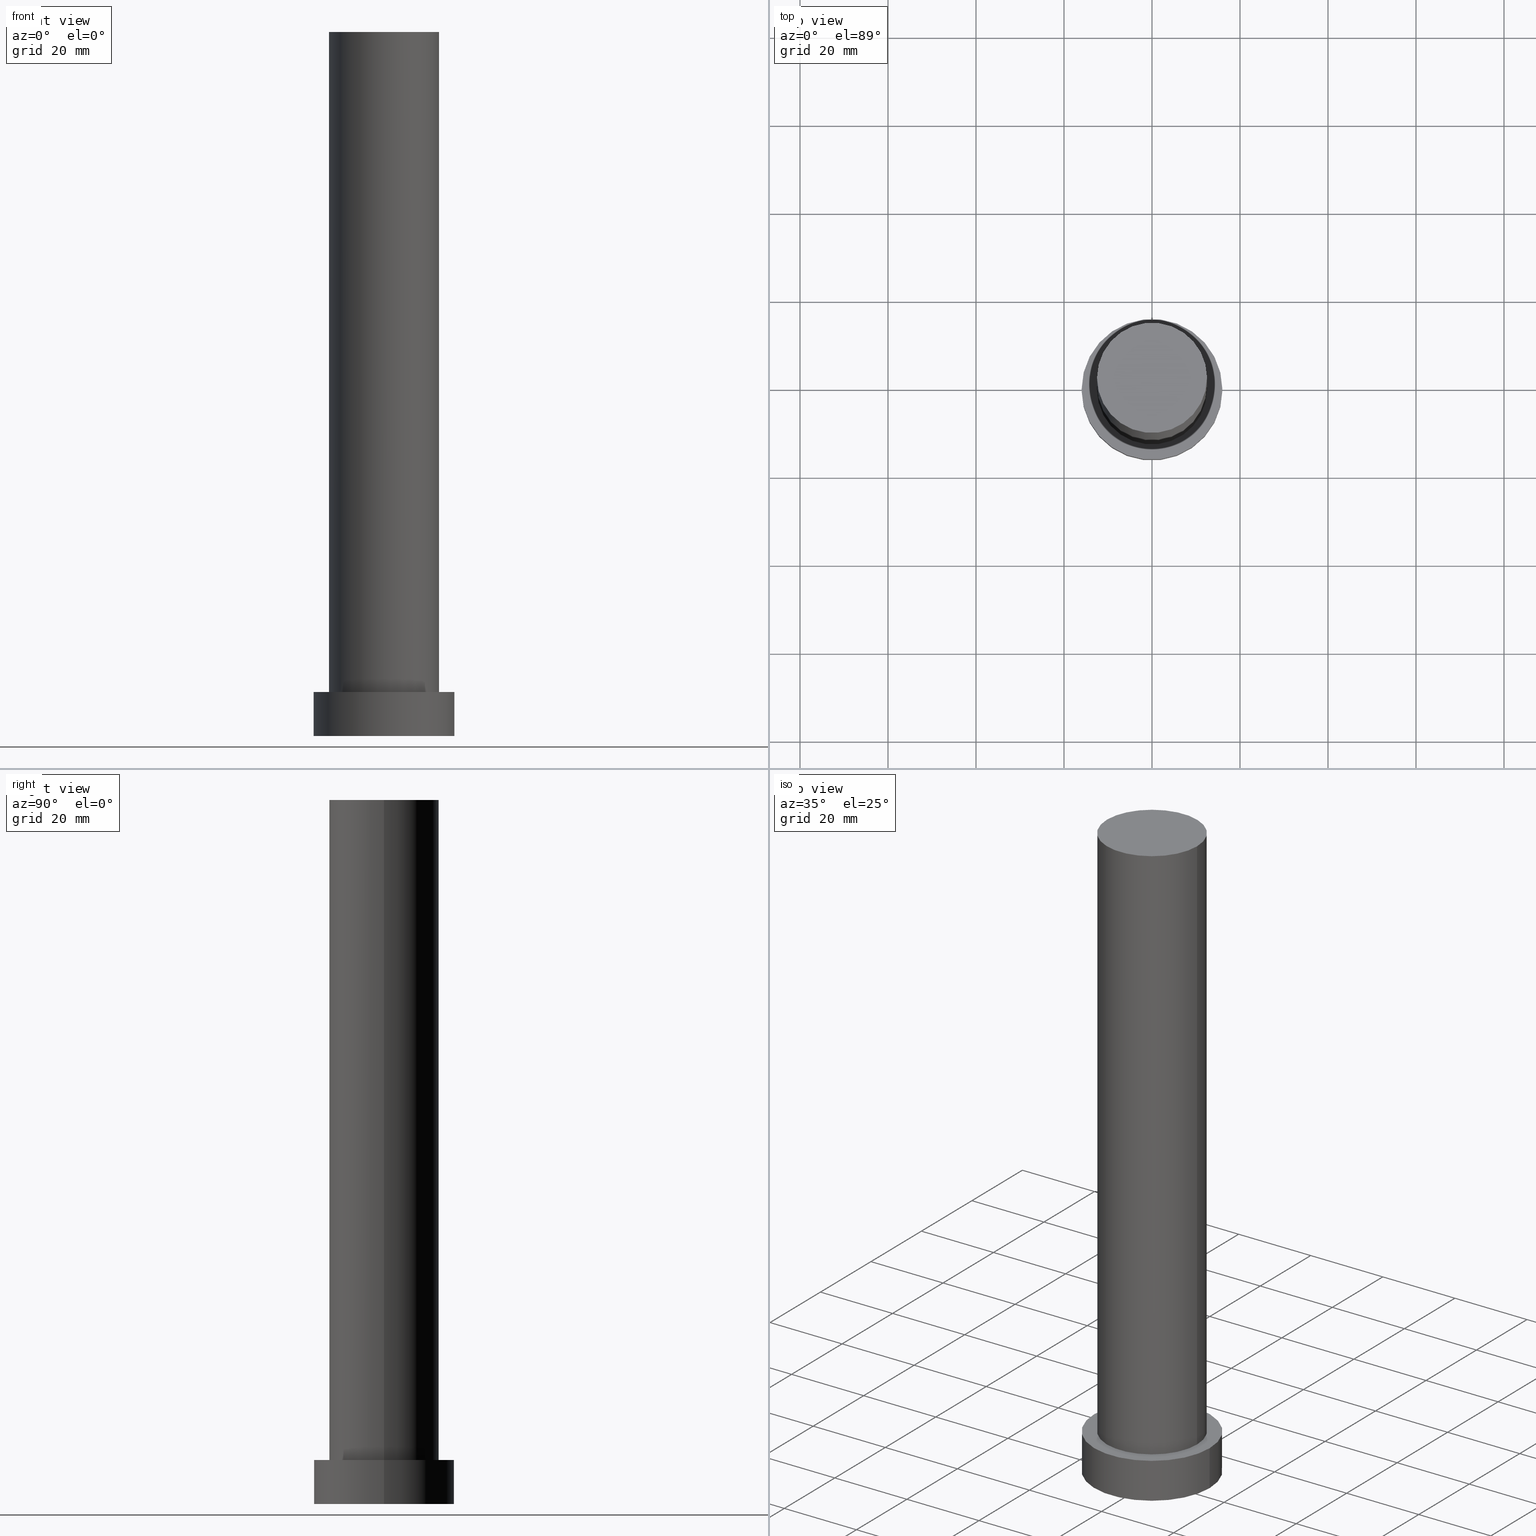
[diagram: canonical four-view strip — front | top / right | iso, engineering-drawing reading convention]
A machine part, canonical four-view strip (front | top / right | iso — engineering-drawing reading convention). The complete STEP part file that produces these views, byte-faithful:
ISO-10303-21;
HEADER;
FILE_DESCRIPTION (( 'STEP AP203' ),
    '1' );
FILE_NAME ('0fbe.STEP',
    '2023-02-13T08:39:05',
    ( '' ),
    ( '' ),
    'SwSTEP 2.0',
    'SolidWorks 2019',
    '' );
FILE_SCHEMA (( 'CONFIG_CONTROL_DESIGN' ));
ENDSEC;

DATA;
#1 = FACE_OUTER_BOUND ( 'NONE', #244, .T. ) ;
#2 = DIRECTION ( 'NONE',  ( 0.000000000000000000, 0.000000000000000000, 1.000000000000000000 ) ) ;
#3 = APPROVAL ( #54, 'NEUR�EN�' ) ;
#4 = PERSON_AND_ORGANIZATION ( #42, #240 ) ;
#5 =( NAMED_UNIT ( * ) PLANE_ANGLE_UNIT ( ) SI_UNIT ( $, .RADIAN. ) );
#6 = LOCAL_TIME ( 9, 39, 5.000000000000000000, #10 ) ;
#7 = DIRECTION ( 'NONE',  ( 1.000000000000000000, 0.000000000000000000, 0.000000000000000000 ) ) ;
#8 = CC_DESIGN_PERSON_AND_ORGANIZATION_ASSIGNMENT ( #144, #46, ( #73 ) ) ;
#9 = ORIENTED_EDGE ( 'NONE', *, *, #103, .F. ) ;
#10 = COORDINATED_UNIVERSAL_TIME_OFFSET ( 1, 0, .AHEAD. ) ;
#11 = EDGE_LOOP ( 'NONE', ( #186, #249 ) ) ;
#12 = CIRCLE ( 'NONE', #31, 16.00000000000000000 ) ;
#13 = APPROVAL_DATE_TIME ( #74, #3 ) ;
#14 = FACE_OUTER_BOUND ( 'NONE', #76, .T. ) ;
#15 = PERSON_AND_ORGANIZATION ( #42, #240 ) ;
#16 = ORIENTED_EDGE ( 'NONE', *, *, #236, .T. ) ;
#17 = ORIENTED_EDGE ( 'NONE', *, *, #103, .T. ) ;
#18 = AXIS2_PLACEMENT_3D ( 'NONE', #171, #188, #152 ) ;
#19 = CIRCLE ( 'NONE', #163, 12.50000000000000000 ) ;
#20 = CARTESIAN_POINT ( 'NONE',  ( -16.00000000000000000, 0.000000000000000000, 0.000000000000000000 ) ) ;
#21 = DIRECTION ( 'NONE',  ( -0.000000000000000000, -0.000000000000000000, -1.000000000000000000 ) ) ;
#22 = EDGE_CURVE ( 'NONE', #247, #222, #238, .T. ) ;
#23 = AXIS2_PLACEMENT_3D ( 'NONE', #121, #83, #63 ) ;
#24 = CARTESIAN_POINT ( 'NONE',  ( 0.000000000000000000, 0.000000000000000000, 10.00000000000000000 ) ) ;
#25 = LINE ( 'NONE', #175, #108 ) ;
#26 = PERSON_AND_ORGANIZATION ( #42, #240 ) ;
#27 = ADVANCED_BREP_SHAPE_REPRESENTATION ( '0fbe', ( #230, #101 ), #180 ) ;
#28 = SECURITY_CLASSIFICATION ( '', '', #202 ) ;
#29 = CLOSED_SHELL ( 'NONE', ( #184, #160, #168, #47, #140, #123, #55 ) ) ;
#30 = EDGE_CURVE ( 'NONE', #129, #219, #69, .T. ) ;
#31 = AXIS2_PLACEMENT_3D ( 'NONE', #62, #215, #45 ) ;
#32 = ORIENTED_EDGE ( 'NONE', *, *, #66, .F. ) ;
#33 = CALENDAR_DATE ( 2023, 13, 2 ) ;
#34 = DIRECTION ( 'NONE',  ( 1.000000000000000000, 0.000000000000000000, 0.000000000000000000 ) ) ;
#35 = PRODUCT_RELATED_PRODUCT_CATEGORY ( 'detail', '', ( #204 ) ) ;
#36 = ORIENTED_EDGE ( 'NONE', *, *, #226, .T. ) ;
#37 = APPROVAL_PERSON_ORGANIZATION ( #4, #98, #162 ) ;
#38 = APPROVAL_DATE_TIME ( #151, #107 ) ;
#39 = VERTEX_POINT ( 'NONE', #133 ) ;
#40 = DIRECTION ( 'NONE',  ( -0.000000000000000000, -0.000000000000000000, -1.000000000000000000 ) ) ;
#41 = CARTESIAN_POINT ( 'NONE',  ( 0.000000000000000000, 0.000000000000000000, 160.0000000000000000 ) ) ;
#42 = PERSON ( 'NEUR�EN�', 'NEUR�EN�', 'NEUR�EN�', ('NEUR�EN�'), ('NEUR�EN�'), ('NEUR�EN�') ) ;
#43 = EDGE_CURVE ( 'NONE', #173, #77, #70, .T. ) ;
#44 = FACE_OUTER_BOUND ( 'NONE', #205, .T. ) ;
#45 = DIRECTION ( 'NONE',  ( 1.000000000000000000, 0.000000000000000000, 0.000000000000000000 ) ) ;
#46 = PERSON_AND_ORGANIZATION_ROLE ( 'creator' ) ;
#47 = ADVANCED_FACE ( 'NONE', ( #57, #14 ), #153, .T. ) ;
#48 = CARTESIAN_POINT ( 'NONE',  ( 0.000000000000000000, 0.000000000000000000, 0.000000000000000000 ) ) ;
#49 = CC_DESIGN_PERSON_AND_ORGANIZATION_ASSIGNMENT ( #207, #203, ( #169 ) ) ;
#50 = DIRECTION ( 'NONE',  ( 0.000000000000000000, 0.000000000000000000, 1.000000000000000000 ) ) ;
#51 = APPROVAL_STATUS ( 'not_yet_approved' ) ;
#52 = CIRCLE ( 'NONE', #86, 12.50000000000000000 ) ;
#53 = ORIENTED_EDGE ( 'NONE', *, *, #30, .F. ) ;
#54 = APPROVAL_STATUS ( 'not_yet_approved' ) ;
#55 = ADVANCED_FACE ( 'NONE', ( #254 ), #104, .T. ) ;
#56 = EDGE_LOOP ( 'NONE', ( #113, #17, #223, #100 ) ) ;
#57 = FACE_BOUND ( 'NONE', #11, .T. ) ;
#58 = CALENDAR_DATE ( 2023, 13, 2 ) ;
#59 = AXIS2_PLACEMENT_3D ( 'NONE', #24, #106, #231 ) ;
#60 = CALENDAR_DATE ( 2023, 13, 2 ) ;
#61 = ORIENTED_EDGE ( 'NONE', *, *, #201, .F. ) ;
#62 = CARTESIAN_POINT ( 'NONE',  ( 0.000000000000000000, 0.000000000000000000, 10.00000000000000000 ) ) ;
#63 = DIRECTION ( 'NONE',  ( -1.000000000000000000, 0.000000000000000000, 0.000000000000000000 ) ) ;
#64 = APPROVAL_PERSON_ORGANIZATION ( #15, #3, #221 ) ;
#65 = LINE ( 'NONE', #194, #214 ) ;
#66 = EDGE_CURVE ( 'NONE', #39, #173, #119, .T. ) ;
#67 = DIRECTION ( 'NONE',  ( 1.000000000000000000, 0.000000000000000000, 0.000000000000000000 ) ) ;
#68 = CARTESIAN_POINT ( 'NONE',  ( 0.000000000000000000, 0.000000000000000000, 0.000000000000000000 ) ) ;
#69 = CIRCLE ( 'NONE', #192, 16.00000000000000000 ) ;
#70 = CIRCLE ( 'NONE', #18, 12.50000000000000000 ) ;
#71 = CALENDAR_DATE ( 2023, 13, 2 ) ;
#72 = LOCAL_TIME ( 9, 39, 5.000000000000000000, #126 ) ;
#73 = PRODUCT_DEFINITION ( 'NEZN�M�', '', #169, #242 ) ;
#74 = DATE_AND_TIME ( #170, #6 ) ;
#75 = ORIENTED_EDGE ( 'NONE', *, *, #85, .F. ) ;
#76 = EDGE_LOOP ( 'NONE', ( #36, #147 ) ) ;
#77 = VERTEX_POINT ( 'NONE', #213 ) ;
#78 = ORIENTED_EDGE ( 'NONE', *, *, #85, .T. ) ;
#79 = DIRECTION ( 'NONE',  ( -0.000000000000000000, -0.000000000000000000, -1.000000000000000000 ) ) ;
#80 = DIRECTION ( 'NONE',  ( 1.000000000000000000, 0.000000000000000000, 0.000000000000000000 ) ) ;
#81 = DIRECTION ( 'NONE',  ( -0.000000000000000000, -0.000000000000000000, -1.000000000000000000 ) ) ;
#82 = DIRECTION ( 'NONE',  ( 1.000000000000000000, 0.000000000000000000, -0.000000000000000000 ) ) ;
#83 = DIRECTION ( 'NONE',  ( -0.000000000000000000, -0.000000000000000000, -1.000000000000000000 ) ) ;
#84 = APPROVAL_STATUS ( 'not_yet_approved' ) ;
#85 = EDGE_CURVE ( 'NONE', #39, #127, #19, .T. ) ;
#86 = AXIS2_PLACEMENT_3D ( 'NONE', #139, #212, #80 ) ;
#87 = DIRECTION ( 'NONE',  ( 0.000000000000000000, 0.000000000000000000, 1.000000000000000000 ) ) ;
#88 =( NAMED_UNIT ( * ) SI_UNIT ( $, .STERADIAN. ) SOLID_ANGLE_UNIT ( ) );
#89 = EDGE_CURVE ( 'NONE', #127, #39, #52, .T. ) ;
#90 = APPLICATION_PROTOCOL_DEFINITION ( 'international standard', 'config_control_design', 1994, #112 ) ;
#91 = DIRECTION ( 'NONE',  ( 1.000000000000000000, 0.000000000000000000, 0.000000000000000000 ) ) ;
#92 = COORDINATED_UNIVERSAL_TIME_OFFSET ( 1, 0, .AHEAD. ) ;
#93 = EDGE_LOOP ( 'NONE', ( #78, #110 ) ) ;
#94 = PERSON_AND_ORGANIZATION_ROLE ( 'classification_officer' ) ;
#95 = AXIS2_PLACEMENT_3D ( 'NONE', #253, #21, #102 ) ;
#96 = ORIENTED_EDGE ( 'NONE', *, *, #217, .F. ) ;
#97 = DATE_AND_TIME ( #60, #220 ) ;
#98 = APPROVAL ( #84, 'NEUR�EN�' ) ;
#99 = ORIENTED_EDGE ( 'NONE', *, *, #226, .F. ) ;
#100 = ORIENTED_EDGE ( 'NONE', *, *, #236, .F. ) ;
#101 = AXIS2_PLACEMENT_3D ( 'NONE', #48, #50, #91 ) ;
#102 = DIRECTION ( 'NONE',  ( -1.000000000000000000, 0.000000000000000000, 0.000000000000000000 ) ) ;
#103 = EDGE_CURVE ( 'NONE', #247, #219, #65, .T. ) ;
#104 = PLANE ( 'NONE',  #227 ) ;
#105 = DIRECTION ( 'NONE',  ( 0.000000000000000000, 0.000000000000000000, 1.000000000000000000 ) ) ;
#106 = DIRECTION ( 'NONE',  ( -0.000000000000000000, -0.000000000000000000, -1.000000000000000000 ) ) ;
#107 = APPROVAL ( #51, 'NEUR�EN�' ) ;
#108 = VECTOR ( 'NONE', #79, 1000.000000000000000 ) ;
#109 = VECTOR ( 'NONE', #177, 1000.000000000000000 ) ;
#110 = ORIENTED_EDGE ( 'NONE', *, *, #89, .T. ) ;
#111 = ORIENTED_EDGE ( 'NONE', *, *, #66, .T. ) ;
#112 = APPLICATION_CONTEXT ( 'configuration controlled 3d designs of mechanical parts and assemblies' ) ;
#113 = ORIENTED_EDGE ( 'NONE', *, *, #22, .F. ) ;
#114 = CC_DESIGN_PERSON_AND_ORGANIZATION_ASSIGNMENT ( #26, #145, ( #204 ) ) ;
#115 = EDGE_LOOP ( 'NONE', ( #9, #99, #16, #250 ) ) ;
#116 = ORIENTED_EDGE ( 'NONE', *, *, #43, .T. ) ;
#117 = FACE_OUTER_BOUND ( 'NONE', #191, .T. ) ;
#118 = CARTESIAN_POINT ( 'NONE',  ( 12.50000000000000000, 1.530808498934191521E-15, 160.0000000000000000 ) ) ;
#119 = LINE ( 'NONE', #176, #109 ) ;
#120 = PLANE ( 'NONE',  #251 ) ;
#121 = CARTESIAN_POINT ( 'NONE',  ( 0.000000000000000000, 0.000000000000000000, 10.00000000000000000 ) ) ;
#122 = COORDINATED_UNIVERSAL_TIME_OFFSET ( 1, 0, .AHEAD. ) ;
#123 = ADVANCED_FACE ( 'NONE', ( #1 ), #196, .T. ) ;
#124 = AXIS2_PLACEMENT_3D ( 'NONE', #225, #131, #208 ) ;
#125 = LOCAL_TIME ( 9, 39, 5.000000000000000000, #122 ) ;
#126 = COORDINATED_UNIVERSAL_TIME_OFFSET ( 1, 0, .AHEAD. ) ;
#127 = VERTEX_POINT ( 'NONE', #118 ) ;
#128 = DIRECTION ( 'NONE',  ( 0.000000000000000000, 0.000000000000000000, 1.000000000000000000 ) ) ;
#129 = VERTEX_POINT ( 'NONE', #20 ) ;
#130 = CC_DESIGN_DATE_AND_TIME_ASSIGNMENT ( #97, #224, ( #28 ) ) ;
#131 = DIRECTION ( 'NONE',  ( 0.000000000000000000, 0.000000000000000000, 1.000000000000000000 ) ) ;
#132 = SHAPE_DEFINITION_REPRESENTATION ( #237, #27 ) ;
#133 = CARTESIAN_POINT ( 'NONE',  ( -12.50000000000000000, 0.000000000000000000, 160.0000000000000000 ) ) ;
#134 = DIRECTION ( 'NONE',  ( 0.000000000000000000, 0.000000000000000000, 1.000000000000000000 ) ) ;
#135 = CC_DESIGN_DATE_AND_TIME_ASSIGNMENT ( #172, #149, ( #73 ) ) ;
#136 = DIRECTION ( 'NONE',  ( 0.000000000000000000, 0.000000000000000000, 1.000000000000000000 ) ) ;
#137 = CC_DESIGN_SECURITY_CLASSIFICATION ( #28, ( #169 ) ) ;
#138 = CARTESIAN_POINT ( 'NONE',  ( 0.000000000000000000, 0.000000000000000000, 160.0000000000000000 ) ) ;
#139 = CARTESIAN_POINT ( 'NONE',  ( 0.000000000000000000, 0.000000000000000000, 160.0000000000000000 ) ) ;
#140 = ADVANCED_FACE ( 'NONE', ( #44 ), #120, .F. ) ;
#141 = AXIS2_PLACEMENT_3D ( 'NONE', #138, #81, #181 ) ;
#142 = CARTESIAN_POINT ( 'NONE',  ( -16.00000000000000000, 0.000000000000000000, 10.00000000000000000 ) ) ;
#143 = AXIS2_PLACEMENT_3D ( 'NONE', #68, #136, #67 ) ;
#144 = PERSON_AND_ORGANIZATION ( #42, #240 ) ;
#145 = PERSON_AND_ORGANIZATION_ROLE ( 'design_owner' ) ;
#146 = PERSON_AND_ORGANIZATION ( #42, #240 ) ;
#147 = ORIENTED_EDGE ( 'NONE', *, *, #22, .T. ) ;
#148 = CC_DESIGN_APPROVAL ( #98, ( #73 ) ) ;
#149 = DATE_TIME_ROLE ( 'creation_date' ) ;
#150 = DIRECTION ( 'NONE',  ( 1.000000000000000000, 0.000000000000000000, 0.000000000000000000 ) ) ;
#151 = DATE_AND_TIME ( #58, #72 ) ;
#152 = DIRECTION ( 'NONE',  ( 1.000000000000000000, 0.000000000000000000, 0.000000000000000000 ) ) ;
#153 = PLANE ( 'NONE',  #124 ) ;
#154 = PERSON_AND_ORGANIZATION_ROLE ( 'creator' ) ;
#155 = ORIENTED_EDGE ( 'NONE', *, *, #201, .T. ) ;
#156 = CARTESIAN_POINT ( 'NONE',  ( 16.00000000000000000, 1.959434878635765131E-15, 10.00000000000000000 ) ) ;
#157 = CARTESIAN_POINT ( 'NONE',  ( 0.000000000000000000, 0.000000000000000000, 0.000000000000000000 ) ) ;
#158 = DIRECTION ( 'NONE',  ( -0.000000000000000000, -0.000000000000000000, -1.000000000000000000 ) ) ;
#159 = CARTESIAN_POINT ( 'NONE',  ( 0.000000000000000000, 0.000000000000000000, 160.0000000000000000 ) ) ;
#160 = ADVANCED_FACE ( 'NONE', ( #197 ), #232, .T. ) ;
#161 = CARTESIAN_POINT ( 'NONE',  ( -12.50000000000000000, 0.000000000000000000, 10.00000000000000000 ) ) ;
#162 = APPROVAL_ROLE ( '' ) ;
#163 = AXIS2_PLACEMENT_3D ( 'NONE', #41, #134, #199 ) ;
#164 = APPROVAL_PERSON_ORGANIZATION ( #146, #107, #243 ) ;
#165 = UNCERTAINTY_MEASURE_WITH_UNIT (LENGTH_MEASURE( 1.000000000000000082E-05 ), #218, 'distance_accuracy_value', 'NONE');
#166 = VECTOR ( 'NONE', #158, 1000.000000000000000 ) ;
#167 = CARTESIAN_POINT ( 'NONE',  ( 0.000000000000000000, 0.000000000000000000, 10.00000000000000000 ) ) ;
#168 = ADVANCED_FACE ( 'NONE', ( #210 ), #211, .T. ) ;
#169 = PRODUCT_DEFINITION_FORMATION_WITH_SPECIFIED_SOURCE ( 'LIBOVOLN�', '', #204, .NOT_KNOWN. ) ;
#170 = CALENDAR_DATE ( 2023, 13, 2 ) ;
#171 = CARTESIAN_POINT ( 'NONE',  ( 0.000000000000000000, 0.000000000000000000, 10.00000000000000000 ) ) ;
#172 = DATE_AND_TIME ( #33, #125 ) ;
#173 = VERTEX_POINT ( 'NONE', #161 ) ;
#174 = CIRCLE ( 'NONE', #206, 12.50000000000000000 ) ;
#175 = CARTESIAN_POINT ( 'NONE',  ( -16.00000000000000000, 0.000000000000000000, 10.00000000000000000 ) ) ;
#176 = CARTESIAN_POINT ( 'NONE',  ( -12.50000000000000000, 0.000000000000000000, 160.0000000000000000 ) ) ;
#177 = DIRECTION ( 'NONE',  ( -0.000000000000000000, -0.000000000000000000, -1.000000000000000000 ) ) ;
#178 = CC_DESIGN_PERSON_AND_ORGANIZATION_ASSIGNMENT ( #190, #154, ( #169 ) ) ;
#179 = DIRECTION ( 'NONE',  ( 1.000000000000000000, 0.000000000000000000, -0.000000000000000000 ) ) ;
#180 =( GEOMETRIC_REPRESENTATION_CONTEXT ( 3 ) GLOBAL_UNCERTAINTY_ASSIGNED_CONTEXT ( ( #165 ) ) GLOBAL_UNIT_ASSIGNED_CONTEXT ( ( #218, #5, #88 ) ) REPRESENTATION_CONTEXT ( 'NONE', 'WORKASPACE' ) );
#181 = DIRECTION ( 'NONE',  ( -1.000000000000000000, 0.000000000000000000, 0.000000000000000000 ) ) ;
#182 = AXIS2_PLACEMENT_3D ( 'NONE', #167, #245, #150 ) ;
#183 = DATE_AND_TIME ( #71, #198 ) ;
#184 = ADVANCED_FACE ( 'NONE', ( #117 ), #233, .T. ) ;
#185 = APPLICATION_PROTOCOL_DEFINITION ( 'international standard', 'config_control_design', 1994, #234 ) ;
#186 = ORIENTED_EDGE ( 'NONE', *, *, #43, .F. ) ;
#187 = PERSON_AND_ORGANIZATION ( #42, #240 ) ;
#188 = DIRECTION ( 'NONE',  ( 0.000000000000000000, 0.000000000000000000, 1.000000000000000000 ) ) ;
#189 = CARTESIAN_POINT ( 'NONE',  ( 0.000000000000000000, 0.000000000000000000, 0.000000000000000000 ) ) ;
#190 = PERSON_AND_ORGANIZATION ( #42, #240 ) ;
#191 = EDGE_LOOP ( 'NONE', ( #209, #155, #228, #32 ) ) ;
#192 = AXIS2_PLACEMENT_3D ( 'NONE', #189, #128, #34 ) ;
#193 = CC_DESIGN_APPROVAL ( #3, ( #28 ) ) ;
#194 = CARTESIAN_POINT ( 'NONE',  ( 16.00000000000000000, 1.959434878635765131E-15, 10.00000000000000000 ) ) ;
#195 = CARTESIAN_POINT ( 'NONE',  ( 16.00000000000000000, 1.959434878635765131E-15, 0.000000000000000000 ) ) ;
#196 = CYLINDRICAL_SURFACE ( 'NONE', #141, 12.50000000000000000 ) ;
#197 = FACE_OUTER_BOUND ( 'NONE', #56, .T. ) ;
#198 = LOCAL_TIME ( 9, 39, 5.000000000000000000, #239 ) ;
#199 = DIRECTION ( 'NONE',  ( 1.000000000000000000, 0.000000000000000000, 0.000000000000000000 ) ) ;
#200 = MECHANICAL_CONTEXT ( 'NONE', #112, 'mechanical' ) ;
#201 = EDGE_CURVE ( 'NONE', #127, #77, #252, .T. ) ;
#202 = SECURITY_CLASSIFICATION_LEVEL ( 'unclassified' ) ;
#203 = PERSON_AND_ORGANIZATION_ROLE ( 'design_supplier' ) ;
#204 = PRODUCT ( '0fbe', '0fbe', '', ( #200 ) ) ;
#205 = EDGE_LOOP ( 'NONE', ( #53, #96 ) ) ;
#206 = AXIS2_PLACEMENT_3D ( 'NONE', #229, #87, #7 ) ;
#207 = PERSON_AND_ORGANIZATION ( #42, #240 ) ;
#208 = DIRECTION ( 'NONE',  ( 1.000000000000000000, 0.000000000000000000, -0.000000000000000000 ) ) ;
#209 = ORIENTED_EDGE ( 'NONE', *, *, #89, .F. ) ;
#210 = FACE_OUTER_BOUND ( 'NONE', #115, .T. ) ;
#211 = CYLINDRICAL_SURFACE ( 'NONE', #23, 16.00000000000000000 ) ;
#212 = DIRECTION ( 'NONE',  ( 0.000000000000000000, 0.000000000000000000, 1.000000000000000000 ) ) ;
#213 = CARTESIAN_POINT ( 'NONE',  ( 12.50000000000000000, 1.530808498934191521E-15, 10.00000000000000000 ) ) ;
#214 = VECTOR ( 'NONE', #40, 1000.000000000000000 ) ;
#215 = DIRECTION ( 'NONE',  ( 0.000000000000000000, 0.000000000000000000, 1.000000000000000000 ) ) ;
#216 = APPROVAL_DATE_TIME ( #183, #98 ) ;
#217 = EDGE_CURVE ( 'NONE', #219, #129, #246, .T. ) ;
#218 =( LENGTH_UNIT ( ) NAMED_UNIT ( * ) SI_UNIT ( .MILLI., .METRE. ) );
#219 = VERTEX_POINT ( 'NONE', #195 ) ;
#220 = LOCAL_TIME ( 9, 39, 5.000000000000000000, #92 ) ;
#221 = APPROVAL_ROLE ( '' ) ;
#222 = VERTEX_POINT ( 'NONE', #142 ) ;
#223 = ORIENTED_EDGE ( 'NONE', *, *, #217, .T. ) ;
#224 = DATE_TIME_ROLE ( 'classification_date' ) ;
#225 = CARTESIAN_POINT ( 'NONE',  ( 0.000000000000000000, 0.000000000000000000, 10.00000000000000000 ) ) ;
#226 = EDGE_CURVE ( 'NONE', #222, #247, #12, .T. ) ;
#227 = AXIS2_PLACEMENT_3D ( 'NONE', #159, #2, #179 ) ;
#228 = ORIENTED_EDGE ( 'NONE', *, *, #248, .T. ) ;
#229 = CARTESIAN_POINT ( 'NONE',  ( 0.000000000000000000, 0.000000000000000000, 10.00000000000000000 ) ) ;
#230 = MANIFOLD_SOLID_BREP ( 'P�idat vysunut�m3', #29 ) ;
#231 = DIRECTION ( 'NONE',  ( -1.000000000000000000, 0.000000000000000000, 0.000000000000000000 ) ) ;
#232 = CYLINDRICAL_SURFACE ( 'NONE', #59, 16.00000000000000000 ) ;
#233 = CYLINDRICAL_SURFACE ( 'NONE', #95, 12.50000000000000000 ) ;
#234 = APPLICATION_CONTEXT ( 'configuration controlled 3d designs of mechanical parts and assemblies' ) ;
#235 = CARTESIAN_POINT ( 'NONE',  ( 12.50000000000000000, 1.530808498934191521E-15, 160.0000000000000000 ) ) ;
#236 = EDGE_CURVE ( 'NONE', #222, #129, #25, .T. ) ;
#237 = PRODUCT_DEFINITION_SHAPE ( 'NONE', 'NONE',  #73 ) ;
#238 = CIRCLE ( 'NONE', #182, 16.00000000000000000 ) ;
#239 = COORDINATED_UNIVERSAL_TIME_OFFSET ( 1, 0, .AHEAD. ) ;
#240 = ORGANIZATION ( 'NEUR�EN�', 'NEUR�EN�', '' ) ;
#241 = CC_DESIGN_PERSON_AND_ORGANIZATION_ASSIGNMENT ( #187, #94, ( #28 ) ) ;
#242 = DESIGN_CONTEXT ( 'detailed design', #234, 'design' ) ;
#243 = APPROVAL_ROLE ( '' ) ;
#244 = EDGE_LOOP ( 'NONE', ( #61, #75, #111, #116 ) ) ;
#245 = DIRECTION ( 'NONE',  ( 0.000000000000000000, 0.000000000000000000, 1.000000000000000000 ) ) ;
#246 = CIRCLE ( 'NONE', #143, 16.00000000000000000 ) ;
#247 = VERTEX_POINT ( 'NONE', #156 ) ;
#248 = EDGE_CURVE ( 'NONE', #77, #173, #174, .T. ) ;
#249 = ORIENTED_EDGE ( 'NONE', *, *, #248, .F. ) ;
#250 = ORIENTED_EDGE ( 'NONE', *, *, #30, .T. ) ;
#251 = AXIS2_PLACEMENT_3D ( 'NONE', #157, #105, #82 ) ;
#252 = LINE ( 'NONE', #235, #166 ) ;
#253 = CARTESIAN_POINT ( 'NONE',  ( 0.000000000000000000, 0.000000000000000000, 160.0000000000000000 ) ) ;
#254 = FACE_OUTER_BOUND ( 'NONE', #93, .T. ) ;
#255 = CC_DESIGN_APPROVAL ( #107, ( #169 ) ) ;
ENDSEC;
END-ISO-10303-21;
